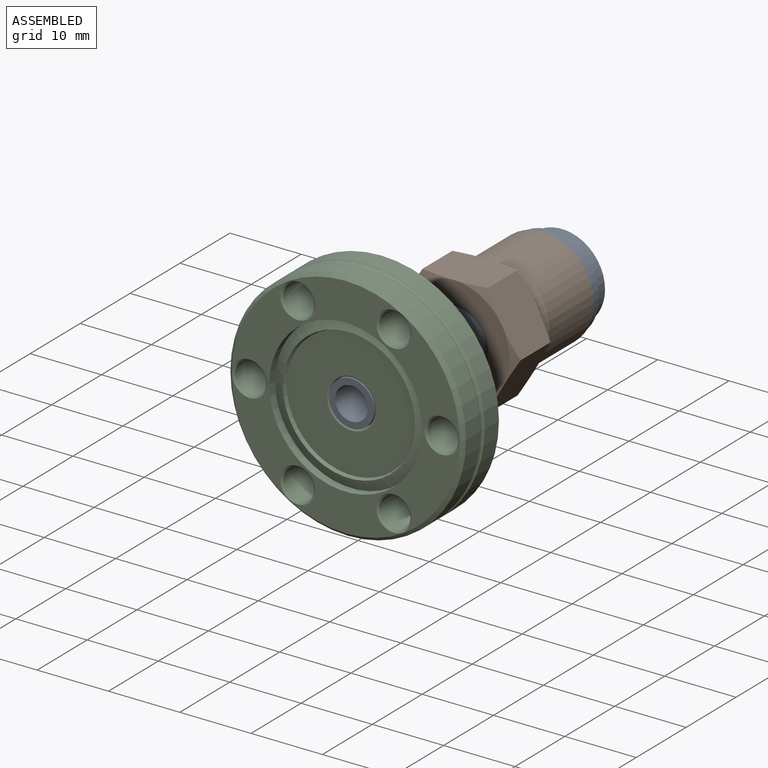
[diagram: assembled view]
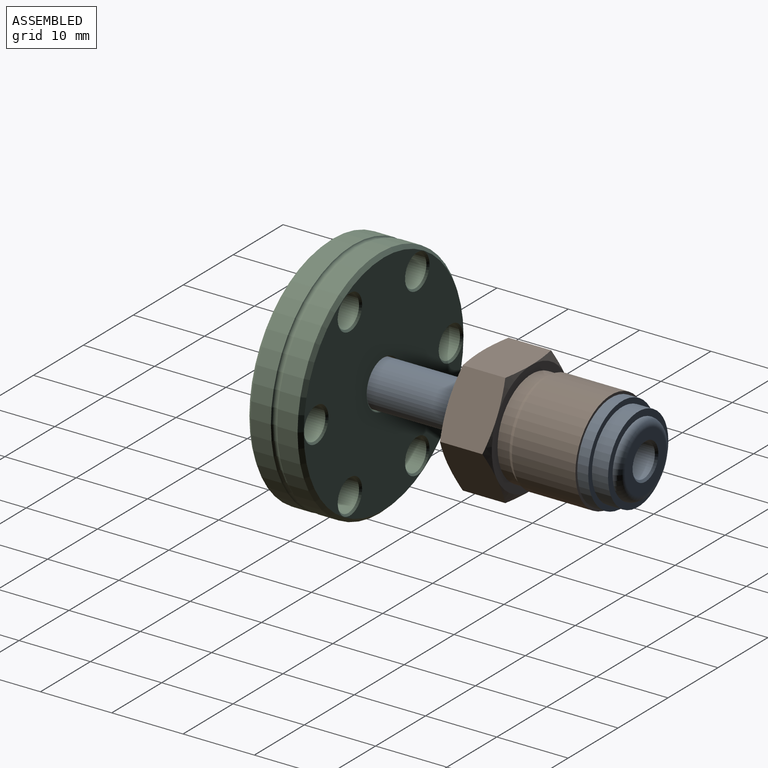
[diagram: assembled view, second angle]
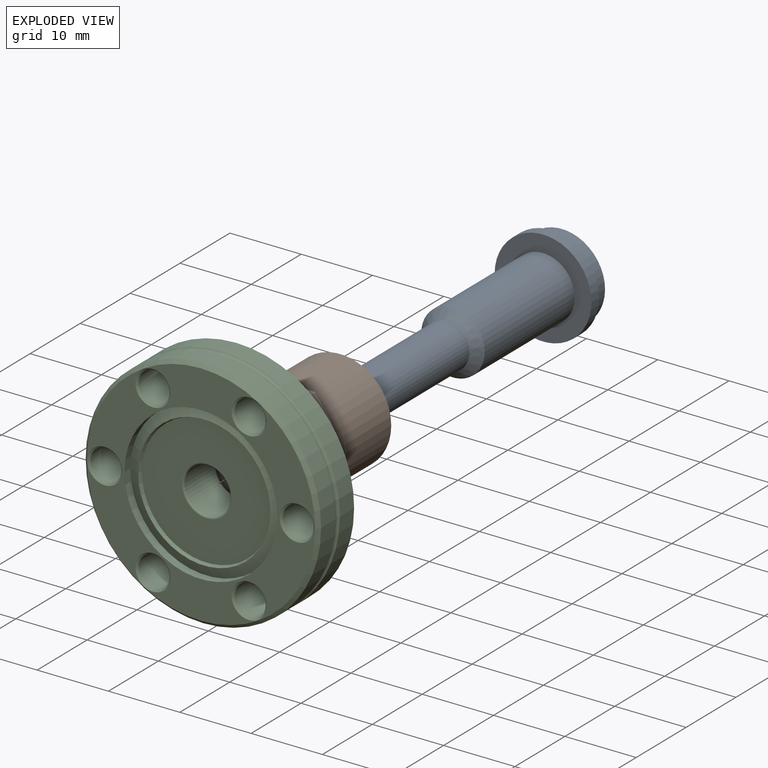
[diagram: exploded view]
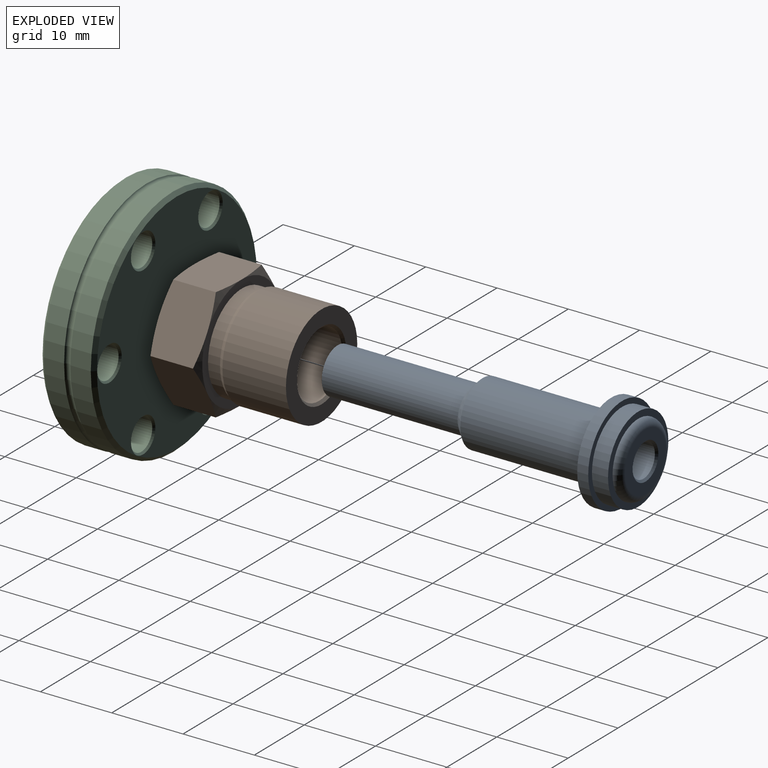
[diagram: exploded view, second angle]
ASSEMBLY  parts=3 mates=2
PART A: 13 faces, bbox 13.6x43.2x13.6 mm
  f0: plane 13.57x13.57mm, normal (0,-1,0), area 82.6mm2, adj f2,f11
  f1: plane 8.21x8.21mm, normal (0,1,0), area 32.2mm2, adj f3,f12
  f2: cylinder r=4.45mm len=18.03mm, axis (0,-1,0), area 503.7mm2, adj f0,f10
  f3: torus R=4.11mm, axis (0,1,0), area 48.2mm2, adj f1,f4
  f4: plane 12.08x12.08mm, normal (0,1,0), area 31.8mm2, adj f3,f7
  f5: cylinder r=2.29mm len=42.89mm, axis (0,1,0), area 616.1mm2, adj f6,f12
  f6: plane 6.35x6.35mm, normal (0,-1,0), area 15.3mm2, adj f5,f9
  f7: cylinder r=6.04mm len=12.08mm, axis (0,-1,0), area 85.6mm2, adj f4,f8
  f8: plane 13.57x13.57mm, normal (0,1,0), area 30.1mm2, adj f7,f11
  f9: cylinder r=3.17mm len=19.05mm, axis (0,-1,0), area 380mm2, adj f6,f10
  f10: cone r=3.81mm half-angle=45deg, axis (0,1,0), area 43mm2, adj f2,f9
  f11: cylinder r=6.79mm len=13.57mm, axis (0,-1,0), area 65.9mm2, adj f0,f8
  f12: cone r=2.43mm half-angle=45deg, axis (0,1,0), area 6.2mm2, adj f1,f5
PART B: 27 faces, bbox 19x18.7x19 mm
  f0: plane 15.88x15.88mm, normal (0,1,0), area 122mm2, adj f12,f14,f17,f19,f20,f22,f23
  f1: plane 15.88x15.88mm, normal (0,-1,0), area 53.2mm2, adj f2,f4,f5,f9,f10,f15,f21
  f2: cone r=8.55mm half-angle=70deg, axis (0,1,0), area 5.7mm2, adj f1,f3,f11
  f3: plane 8.64x7.56mm, normal (0.87,0,0.5), area 60.1mm2, adj f2,f4,f7,f11,f22,f23
  f4: cone r=8.55mm half-angle=70deg, axis (0,1,0), area 5.7mm2, adj f1,f3,f7
  f5: cone r=8.55mm half-angle=70deg, axis (0,1,0), area 5.7mm2, adj f1,f6,f7
  f6: plane 8.64x7.56mm, normal (-0.87,0,0.5), area 60mm2, adj f5,f7,f8,f9,f12,f14
  f7: plane 9.87x7.56mm, normal (0,0,1), area 60mm2, adj f3,f4,f5,f6,f14,f22
  f8: plane 8.64x7.56mm, normal (-0.87,0,-0.5), area 60mm2, adj f6,f9,f12,f13,f15,f20
  f9: cone r=8.55mm half-angle=70deg, axis (0,1,0), area 5.7mm2, adj f1,f6,f8
  f10: cone r=8.55mm half-angle=70deg, axis (0,1,0), area 5.7mm2, adj f1,f11,f13
  f11: plane 8.64x7.56mm, normal (0.87,0,-0.5), area 60.1mm2, adj f2,f3,f10,f13,f19,f23
  f12: cone r=8.55mm half-angle=70deg, axis (0,-1,0), area 5.7mm2, adj f0,f6,f8
  f13: plane 9.87x7.56mm, normal (0,0,-1), area 60.1mm2, adj f8,f10,f11,f15,f19,f20
  f14: cone r=8.55mm half-angle=70deg, axis (0,-1,0), area 5.7mm2, adj f0,f6,f7
  f15: cone r=8.55mm half-angle=70deg, axis (0,1,0), area 5.7mm2, adj f1,f8,f13
  f16: cylinder r=4.57mm len=17.35mm, axis (0,1,0), area 498.4mm2, adj f17,f18
  f17: cone r=4.57mm half-angle=45deg, axis (0,1,0), area 14.5mm2, adj f0,f16
  f18: cone r=4.91mm half-angle=45deg, axis (0,-1,0), area 14.5mm2, adj f16,f26
  f19: cone r=8.55mm half-angle=70deg, axis (0,-1,0), area 5.7mm2, adj f0,f11,f13
  f20: cone r=8.55mm half-angle=70deg, axis (0,-1,0), area 5.7mm2, adj f0,f8,f13
  f21: cylinder r=6.79mm len=13.57mm, axis (0,1,0), area 71.5mm2, adj f1,f24
  f22: cone r=8.55mm half-angle=70deg, axis (0,-1,0), area 5.7mm2, adj f0,f3,f7
  f23: cone r=8.55mm half-angle=70deg, axis (0,-1,0), area 5.7mm2, adj f0,f3,f11
  f24: cone r=6.97mm half-angle=31deg, axis (0,-1,0), area 30.3mm2, adj f21,f25
  f25: cylinder r=7.14mm len=14.29mm, axis (0,-1,0), area 399.7mm2, adj f24,f26
  f26: plane 14.29x14.29mm, normal (0,-1,0), area 84.4mm2, adj f18,f25
PART C: 32 faces, bbox 36.3x7.6x36.3 mm
  f0: cylinder r=16.51mm len=33.02mm, axis (0,-1,0), area 296.9mm2, adj f4,f12
  f1: torus R=3.44mm, axis (0,1,0), area 6.6mm2, adj f8,f10
  f2: plane 18.17x18.17mm, normal (0,-1,0), area 221mm2, adj f3,f13
  f3: cone r=9.27mm half-angle=20deg, axis (0,-1,0), area 31.2mm2, adj f2,f5
  f4: torus R=16.76mm, axis (0,-1,0), area 109.3mm2, adj f0,f9
  f5: cone r=10.73mm half-angle=70deg, axis (0,1,0), area 97.7mm2, adj f3,f6
  f6: cylinder r=10.73mm len=21.46mm, axis (0,1,0), area 80.4mm2, adj f5,f7
  f7: plane 32x32mm, normal (0,-1,0), area 330.6mm2, adj f6,f12,f16,f19,f22,f25,f28,f31
  f8: plane 32x32mm, normal (0,1,0), area 655.2mm2, adj f1,f11,f15,f18,f21,f24,f27,f30
  f9: cylinder r=16.51mm len=33.02mm, axis (0,-1,0), area 296.9mm2, adj f4,f11
  f10: cylinder r=3.24mm len=6.48mm, axis (0,-1,0), area 122mm2, adj f1,f13
  f11: cone r=16mm half-angle=45deg, axis (0,-1,0), area 73.4mm2, adj f8,f9
  f12: cone r=16.51mm half-angle=45deg, axis (0,1,0), area 73.4mm2, adj f0,f7
  f13: torus R=3.49mm, axis (0,1,0), area 8.3mm2, adj f2,f10
  f14: cylinder r=2.18mm len=7.11mm, axis (0,-1,0), area 97.6mm2, adj f15,f16
  f15: cone r=2.18mm half-angle=45deg, axis (0,1,0), area 5.2mm2, adj f8,f14
  f16: cone r=2.44mm half-angle=45deg, axis (0,-1,0), area 5.2mm2, adj f7,f14
  f17: cylinder r=2.18mm len=7.11mm, axis (0,-1,0), area 97.6mm2, adj f18,f19
  f18: cone r=2.18mm half-angle=45deg, axis (0,1,0), area 5.2mm2, adj f8,f17
  f19: cone r=2.44mm half-angle=45deg, axis (0,-1,0), area 5.2mm2, adj f7,f17
  f20: cylinder r=2.18mm len=7.11mm, axis (0,-1,0), area 97.6mm2, adj f21,f22
  f21: cone r=2.18mm half-angle=45deg, axis (0,1,0), area 5.2mm2, adj f8,f20
  f22: cone r=2.44mm half-angle=45deg, axis (0,-1,0), area 5.2mm2, adj f7,f20
  f23: cylinder r=2.18mm len=7.11mm, axis (0,-1,0), area 97.6mm2, adj f24,f25
  f24: cone r=2.18mm half-angle=45deg, axis (0,1,0), area 5.2mm2, adj f8,f23
  f25: cone r=2.44mm half-angle=45deg, axis (0,-1,0), area 5.2mm2, adj f7,f23
  f26: cylinder r=2.18mm len=7.11mm, axis (0,-1,0), area 97.6mm2, adj f27,f28
  f27: cone r=2.18mm half-angle=45deg, axis (0,1,0), area 5.2mm2, adj f8,f26
  f28: cone r=2.44mm half-angle=45deg, axis (0,-1,0), area 5.2mm2, adj f7,f26
  f29: cylinder r=2.18mm len=7.11mm, axis (0,-1,0), area 97.6mm2, adj f30,f31
  f30: cone r=2.18mm half-angle=45deg, axis (0,1,0), area 5.2mm2, adj f8,f29
  f31: cone r=2.44mm half-angle=45deg, axis (0,-1,0), area 5.2mm2, adj f7,f29
PLACE A t=(-0.46,-0.66,12.95)mm
PLACE B rot(axis=(1,0,0),180deg) t=(-0.46,37.7,12.95)mm
PLACE C t=(-0.46,1.99,12.95)mm
MATE revolute B.f2 <-> A.f2  axis (0,1,0) through (-0.46,37.7,12.95)mm
MATE revolute C.f1 <-> A.f2  axis (0,-1,0) through (-0.46,-0.66,12.95)mm
